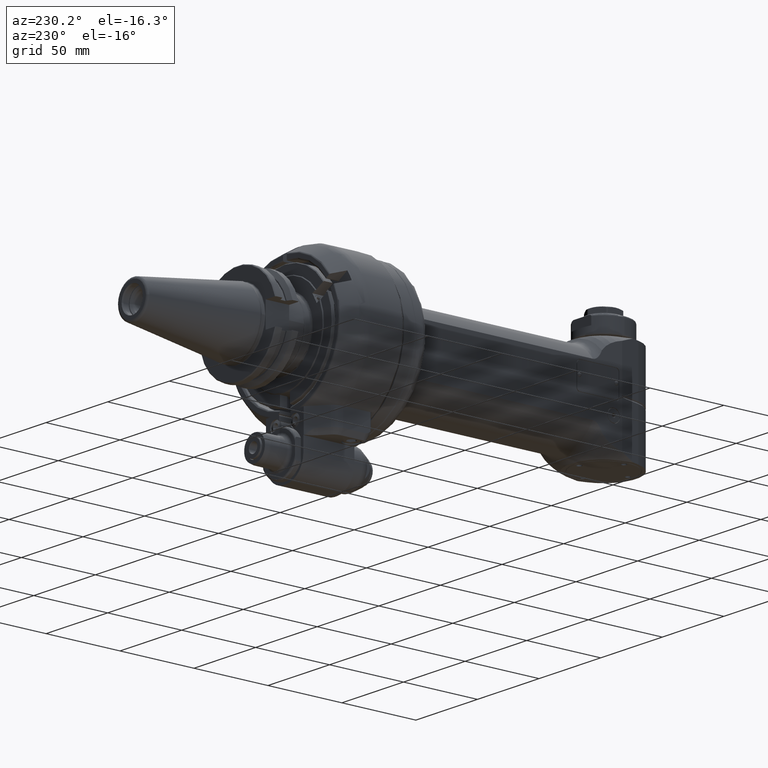
[diagram: clean part render]
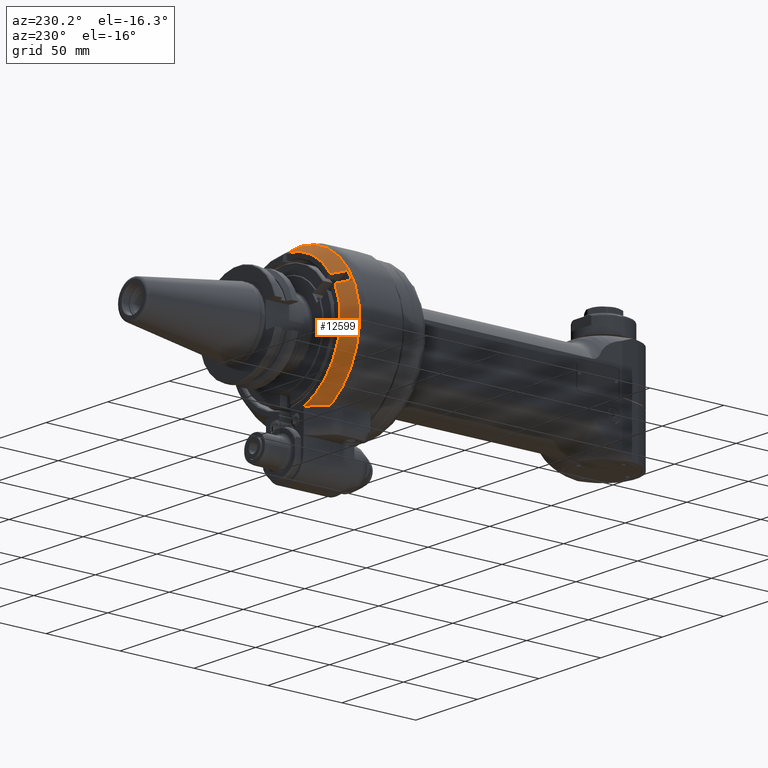
[diagram: same view with one face highlighted and labeled with its STEP entity id]
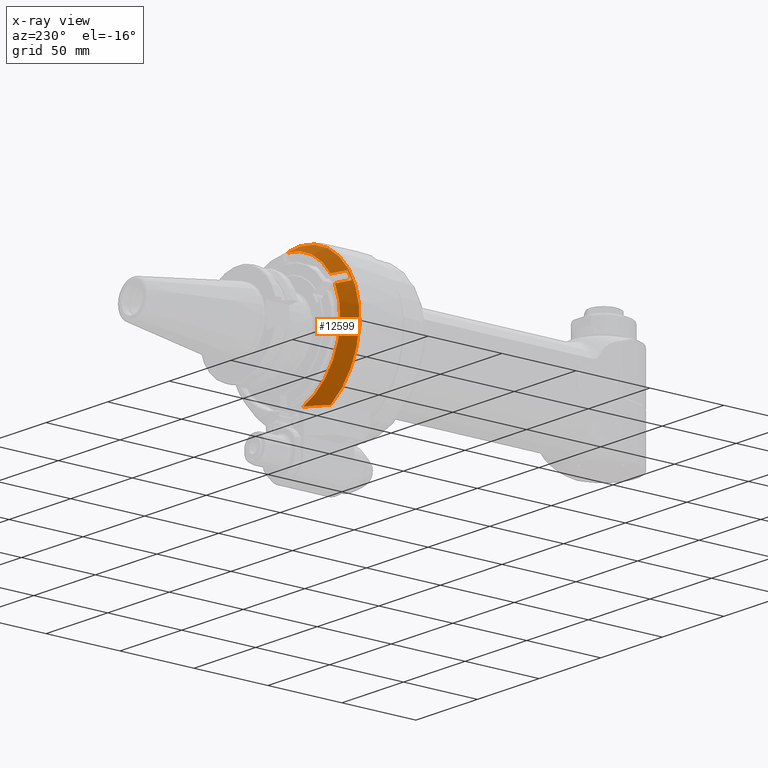
[diagram: x-ray of the same camera — body ghosted, the highlighted face saturated]
A machine part, auxiliary view. The second image highlights one B-rep face of the part: STEP entity #12599.
The next image is the same camera in x-ray: the body ghosted, the highlighted face saturated — about 0% of this face is hidden behind the body in this view.
In plain terms, the highlighted conical surface has half-angle 30 deg.
Its self-contained STEP definition (entity closure, byte-faithful):
#146=B_SPLINE_CURVE_WITH_KNOTS('',3,(#23046,#23047,#23048,#23049,#23050,
#23051,#23052,#23053,#23054,#23055),.UNSPECIFIED.,.F.,.F.,(4,3,3,4),(0.,
0.3333333333333,0.6666666666667,0.999997659970445),.UNSPECIFIED.);
#150=B_SPLINE_CURVE_WITH_KNOTS('',3,(#23188,#23189,#23190,#23191,#23192,
#23193,#23194,#23195,#23196,#23197),.UNSPECIFIED.,.F.,.F.,(4,3,3,4),(7.66596114732898E-6,
0.3333333333333,0.6666666666667,1.),.UNSPECIFIED.);
#151=B_SPLINE_CURVE_WITH_KNOTS('',3,(#23201,#23202,#23203,#23204,#23205,
#23206,#23207,#23208,#23209,#23210),.UNSPECIFIED.,.F.,.F.,(4,3,3,4),(0.,
0.3333333333333,0.6666666666667,0.999992857018884),.UNSPECIFIED.);
#310=(
BOUNDED_CURVE()
B_SPLINE_CURVE(2,(#23122,#23123,#23124),.UNSPECIFIED.,.F.,.F.)
B_SPLINE_CURVE_WITH_KNOTS((3,3),(2.8844916667244,4.73034461921109),
 .UNSPECIFIED.)
CURVE()
GEOMETRIC_REPRESENTATION_ITEM()
RATIONAL_B_SPLINE_CURVE((1.03298555452386,1.03049774868244,1.01131829580632))
REPRESENTATION_ITEM('')
);
#428=CONICAL_SURFACE('',#13820,46.84048999,0.523598775598299);
#1262=CIRCLE('',#13817,49.39230484541);
#1264=CIRCLE('',#13821,44.28867513459);
#1265=CIRCLE('',#13822,48.90747728811);
#1266=CIRCLE('',#13823,44.28867513459);
#1915=FACE_OUTER_BOUND('',#2710,.T.);
#2710=EDGE_LOOP('',(#10614,#10615,#10616,#10617,#10618,#10619,#10620,#10621));
#5872=VERTEX_POINT('',#23043);
#5873=VERTEX_POINT('',#23045);
#5876=VERTEX_POINT('',#23069);
#5877=VERTEX_POINT('',#23121);
#5878=VERTEX_POINT('',#23185);
#5879=VERTEX_POINT('',#23187);
#5880=VERTEX_POINT('',#23198);
#5881=VERTEX_POINT('',#23200);
#7529=EDGE_CURVE('',#5873,#5872,#146,.T.);
#7534=EDGE_CURVE('',#5873,#5876,#1262,.T.);
#7535=EDGE_CURVE('',#5876,#5877,#310,.T.);
#7538=EDGE_CURVE('',#5878,#5872,#1264,.T.);
#7539=EDGE_CURVE('',#5878,#5879,#150,.T.);
#7540=EDGE_CURVE('',#5880,#5879,#1265,.T.);
#7541=EDGE_CURVE('',#5880,#5881,#151,.T.);
#7542=EDGE_CURVE('',#5877,#5881,#1266,.T.);
#10614=ORIENTED_EDGE('',*,*,#7535,.F.);
#10615=ORIENTED_EDGE('',*,*,#7534,.F.);
#10616=ORIENTED_EDGE('',*,*,#7529,.T.);
#10617=ORIENTED_EDGE('',*,*,#7538,.F.);
#10618=ORIENTED_EDGE('',*,*,#7539,.T.);
#10619=ORIENTED_EDGE('',*,*,#7540,.F.);
#10620=ORIENTED_EDGE('',*,*,#7541,.T.);
#10621=ORIENTED_EDGE('',*,*,#7542,.F.);
#12599=ADVANCED_FACE('',(#1915),#428,.T.);
#13817=AXIS2_PLACEMENT_3D('',#23119,#16761,#16762);
#13820=AXIS2_PLACEMENT_3D('',#23184,#16767,#16768);
#13821=AXIS2_PLACEMENT_3D('',#23186,#16769,#16770);
#13822=AXIS2_PLACEMENT_3D('',#23199,#16771,#16772);
#13823=AXIS2_PLACEMENT_3D('',#23211,#16773,#16774);
#16761=DIRECTION('center_axis',(0.,-1.,0.));
#16762=DIRECTION('ref_axis',(-0.0303691031364992,0.,0.999538752412674));
#16767=DIRECTION('center_axis',(0.,-1.,0.));
#16768=DIRECTION('ref_axis',(0.,0.,1.));
#16769=DIRECTION('center_axis',(0.,1.,0.));
#16770=DIRECTION('ref_axis',(-0.823803402997795,0.,0.566875606468697));
#16771=DIRECTION('center_axis',(0.,1.,0.));
#16772=DIRECTION('ref_axis',(-0.899586791598834,0.,0.436742034135616));
#16773=DIRECTION('center_axis',(0.,1.,0.));
#16774=DIRECTION('ref_axis',(-0.317304540867809,0.,-0.948323693864426));
#23043=CARTESIAN_POINT('',(-1.49999994161814,39.0000000307714,44.2632663040608));
#23045=CARTESIAN_POINT('',(-1.50000010664755,30.1602661977814,49.3695157362103));
#23046=CARTESIAN_POINT('Ctrl Pts',(-1.5,30.16027835559,49.36950871544));
#23047=CARTESIAN_POINT('Ctrl Pts',(-1.5,31.18982877885,48.77482320417));
#23048=CARTESIAN_POINT('Ctrl Pts',(-1.5,32.2036186971448,48.1892313102351));
#23049=CARTESIAN_POINT('Ctrl Pts',(-1.5,33.2013919082089,47.612880877291));
#23050=CARTESIAN_POINT('Ctrl Pts',(-1.5,34.1991651192732,47.0365304443467));
#23051=CARTESIAN_POINT('Ctrl Pts',(-1.5,35.1809216231068,46.4694214723933));
#23052=CARTESIAN_POINT('Ctrl Pts',(-1.5,36.1472838686536,45.9111942687465));
#23053=CARTESIAN_POINT('Ctrl Pts',(-1.5,37.1136393302515,45.3529709839044));
#23054=CARTESIAN_POINT('Ctrl Pts',(-1.5,38.0646007497001,44.8036293426678));
#23055=CARTESIAN_POINT('Ctrl Pts',(-1.5,39.0000000311363,44.2632663046979));
#23069=CARTESIAN_POINT('',(-25.9923022789438,30.1602540400476,-42.0000000006684));
#23119=CARTESIAN_POINT('Origin',(0.,30.16025403784,0.));
#23121=CARTESIAN_POINT('',(-14.0529977328341,38.9999999985392,-41.999999999679));
#23122=CARTESIAN_POINT('Ctrl Pts',(-25.9923022783559,30.1602540415666,-42.));
#23123=CARTESIAN_POINT('Ctrl Pts',(-19.6974303646479,35.8978898913525,-42.));
#23124=CARTESIAN_POINT('Ctrl Pts',(-14.0529977330381,38.9999999978967,-42.));
#23184=CARTESIAN_POINT('Origin',(0.,34.58012701892,0.));
#23185=CARTESIAN_POINT('',(-36.4851322129092,39.0000574701093,25.1061533734197));
#23186=CARTESIAN_POINT('Origin',(0.,39.,0.));
#23187=CARTESIAN_POINT('',(-40.4965205788,31.,27.42212894174));
#23188=CARTESIAN_POINT('Ctrl Pts',(-36.4851325523638,39.0000575278077,25.106152984854));
#23189=CARTESIAN_POINT('Ctrl Pts',(-36.9021284692853,38.1686740178928,25.3469056897396));
#23190=CARTESIAN_POINT('Ctrl Pts',(-37.3285997235782,37.3183138636494,25.5931289832072));
#23191=CARTESIAN_POINT('Ctrl Pts',(-37.7642990141934,36.4494677703336,25.8446800859296));
#23192=CARTESIAN_POINT('Ctrl Pts',(-38.2000083252007,35.5806016949368,26.0962369739281));
#23193=CARTESIAN_POINT('Ctrl Pts',(-38.6449460969957,34.6932488301632,26.3531219162466));
#23194=CARTESIAN_POINT('Ctrl Pts',(-39.1001961495135,33.7852448292439,26.6159606566164));
#23195=CARTESIAN_POINT('Ctrl Pts',(-39.5554462020312,32.8772408283249,26.8787993969861));
#23196=CARTESIAN_POINT('Ctrl Pts',(-40.0210085352717,31.94858569126,27.147591935407));
#23197=CARTESIAN_POINT('Ctrl Pts',(-40.4965205787996,31.,27.4221289417408));
#23198=CARTESIAN_POINT('',(-43.9965205788,31.,21.35995111525));
#23199=CARTESIAN_POINT('Origin',(0.,31.,0.));
#23200=CARTESIAN_POINT('',(-39.9851346518321,39.0000535829498,19.0439758254266));
#23201=CARTESIAN_POINT('Ctrl Pts',(-43.9965205787991,31.,21.3599511152515));
#23202=CARTESIAN_POINT('Ctrl Pts',(-43.5214324221258,31.94774009122,21.0856588401073));
#23203=CARTESIAN_POINT('Ctrl Pts',(-43.0561505057139,32.8758359954399,20.8170282004178));
#23204=CARTESIAN_POINT('Ctrl Pts',(-42.6009808609627,33.7836797088564,20.5542358834937));
#23205=CARTESIAN_POINT('Ctrl Pts',(-42.1458112162113,34.6915234222732,20.2914435665696));
#23206=CARTESIAN_POINT('Ctrl Pts',(-41.7007538431207,35.5791149448868,20.0344895724109));
#23207=CARTESIAN_POINT('Ctrl Pts',(-41.2648942837493,36.4482807184811,19.782845938479));
#23208=CARTESIAN_POINT('Ctrl Pts',(-40.8290440643879,37.317427866771,19.5312076970043));
#23209=CARTESIAN_POINT('Ctrl Pts',(-40.4023912645511,38.168150055722,19.284879588168));
#23210=CARTESIAN_POINT('Ctrl Pts',(-39.9851344961698,39.0000536366557,19.0439762806218));
#23211=CARTESIAN_POINT('Origin',(0.,39.,0.));